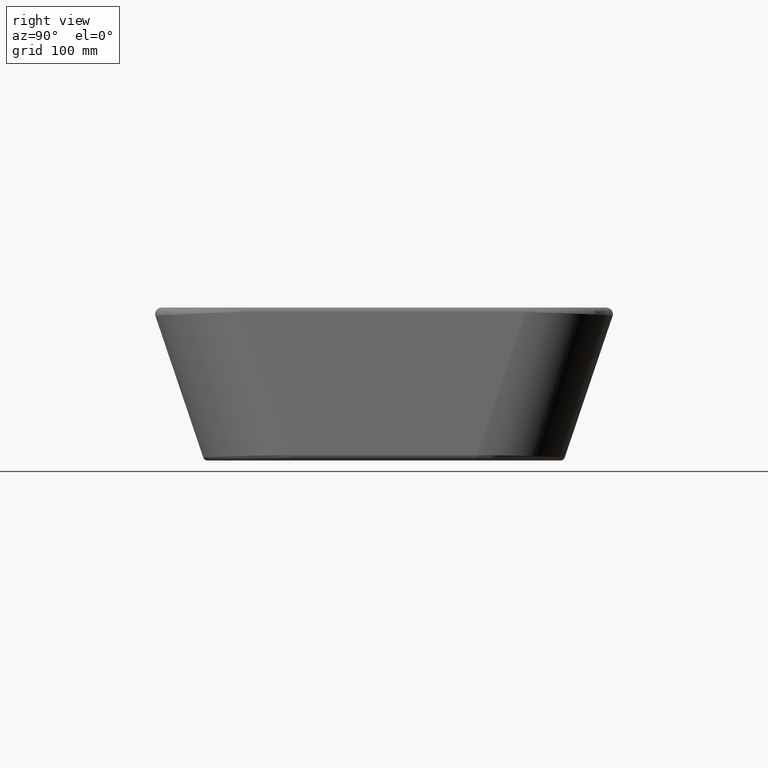
[diagram: clean part render]
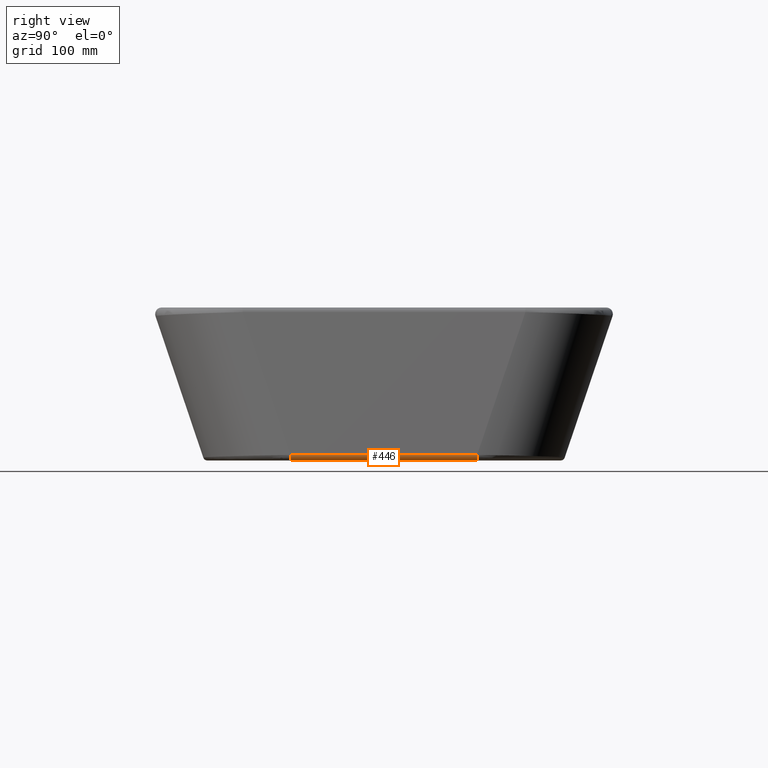
[diagram: same view with one face highlighted and labeled with its STEP entity id]
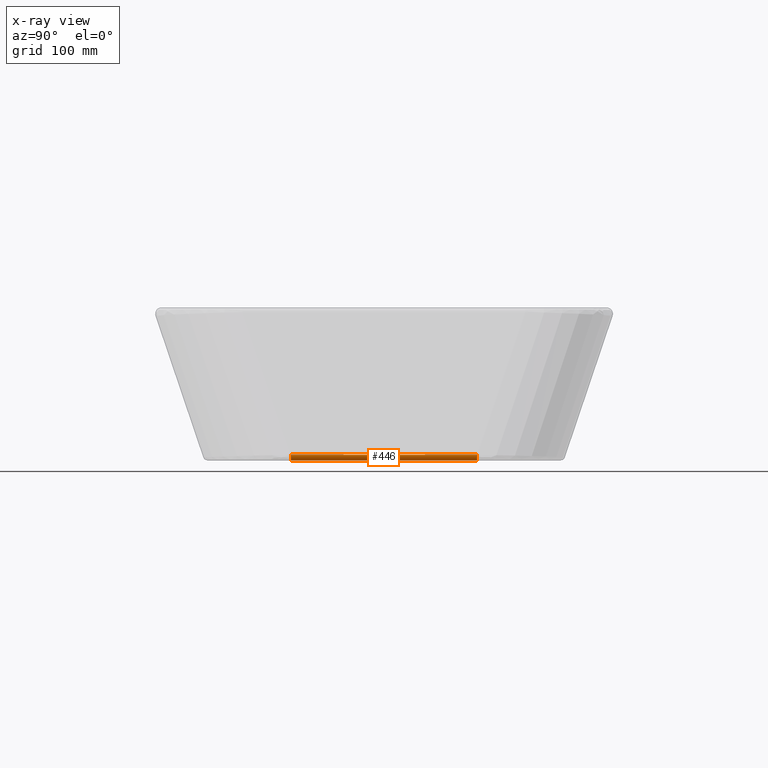
[diagram: x-ray of the same camera — body ghosted, the highlighted face saturated]
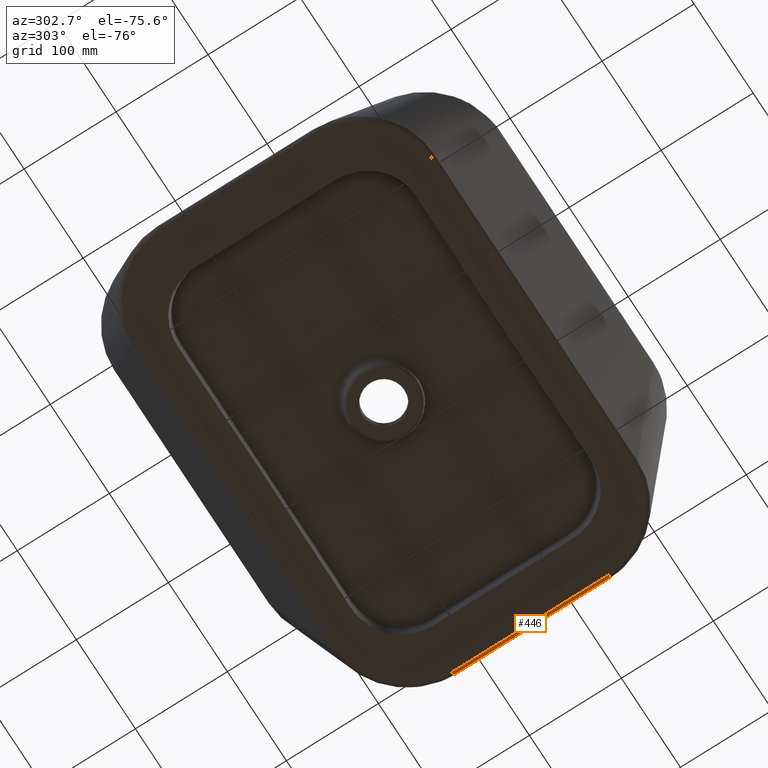
[diagram: same view with one face highlighted and labeled with its STEP entity id]
A machine part, right view. The second image highlights one B-rep face of the part: STEP entity #446.
The next image is the same camera in x-ray: the body ghosted, the highlighted face saturated — about 0% of this face is hidden behind the body in this view.
A second angle (auxiliary view) of the same face is appended — the face is thin or edge-on in the first view.
In plain terms, the highlighted cylindrical surface (edge-blend (fillet) strip) has radius 4 mm, axis along (-0, 1, -0).
Its self-contained STEP definition (entity closure, byte-faithful):
#161=CIRCLE('',#1320,4.);
#164=CIRCLE('',#1324,4.);
#188=CYLINDRICAL_SURFACE('',#1325,4.);
#255=FACE_OUTER_BOUND('',#551,.T.);
#298=LINE('',#1901,#338);
#325=LINE('',#2684,#365);
#338=VECTOR('',#1342,1.);
#365=VECTOR('',#1419,1.);
#446=ADVANCED_FACE('',(#255),#188,.T.);
#551=EDGE_LOOP('',(#873,#874,#875,#876));
#873=ORIENTED_EDGE('',*,*,#1159,.T.);
#874=ORIENTED_EDGE('',*,*,#1011,.F.);
#875=ORIENTED_EDGE('',*,*,#1162,.F.);
#876=ORIENTED_EDGE('',*,*,#1074,.F.);
#911=VERTEX_POINT('',#1900);
#912=VERTEX_POINT('',#1902);
#964=VERTEX_POINT('',#2683);
#965=VERTEX_POINT('',#2685);
#1011=EDGE_CURVE('',#911,#912,#298,.T.);
#1074=EDGE_CURVE('',#964,#965,#325,.T.);
#1159=EDGE_CURVE('',#964,#912,#161,.T.);
#1162=EDGE_CURVE('',#965,#911,#164,.T.);
#1320=AXIS2_PLACEMENT_3D('',#5042,#1534,#1535);
#1324=AXIS2_PLACEMENT_3D('',#5076,#1542,#1543);
#1325=AXIS2_PLACEMENT_3D('',#5077,#1544,#1545);
#1342=DIRECTION('',(1.,-2.20046511983548E-017,0.));
#1419=DIRECTION('',(-1.,2.20046511983548E-017,-8.1727598767674E-034));
#1534=DIRECTION('',(-1.,0.,0.));
#1535=DIRECTION('',(0.,0.,1.));
#1542=DIRECTION('',(-1.,0.,0.));
#1543=DIRECTION('',(0.,0.,1.));
#1544=DIRECTION('',(-1.,2.20046511983548E-017,0.));
#1545=DIRECTION('',(0.,-1.,0.));
#1900=CARTESIAN_POINT('',(184.609062066346,-1123.66676247278,229.189909381171));
#1901=CARTESIAN_POINT('',(104.906238427935,-1123.66676247278,229.189909381171));
#1902=CARTESIAN_POINT('',(355.106173071399,-1123.66676247278,229.189909381171));
#2683=CARTESIAN_POINT('',(355.106173071399,-1127.48425689314,223.995448686735));
#2684=CARTESIAN_POINT('',(481.607617568872,-1127.48425689314,223.995448686736));
#2685=CARTESIAN_POINT('',(184.609062066346,-1127.48425689314,223.995448686736));
#5042=CARTESIAN_POINT('',(355.106173071399,-1123.66676247278,225.189909381171));
#5076=CARTESIAN_POINT('',(184.609062066346,-1123.66676247278,225.189909381171));
#5077=CARTESIAN_POINT('',(481.607617568872,-1123.66676247278,225.189909381171));